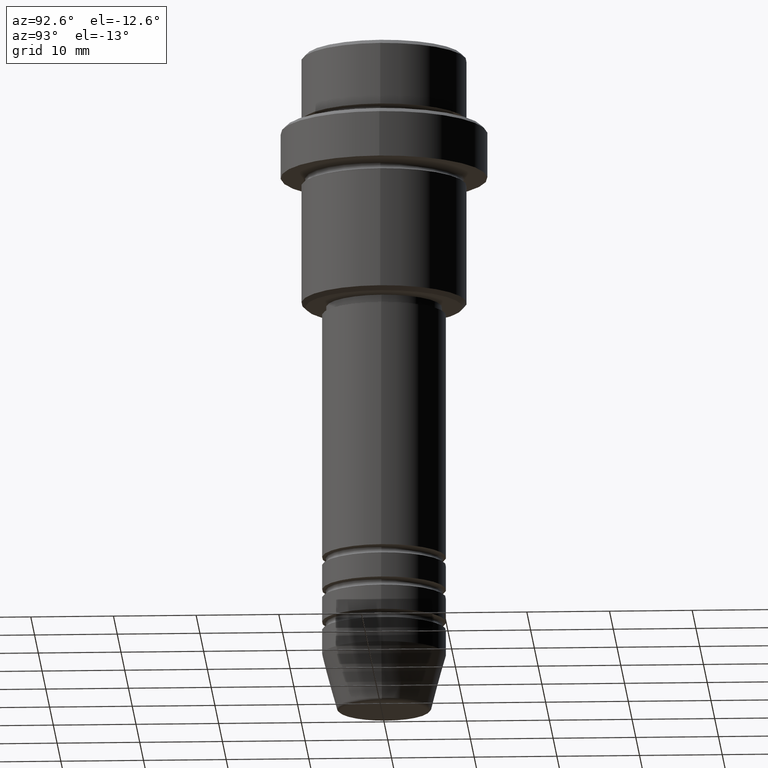
[diagram: clean part render]
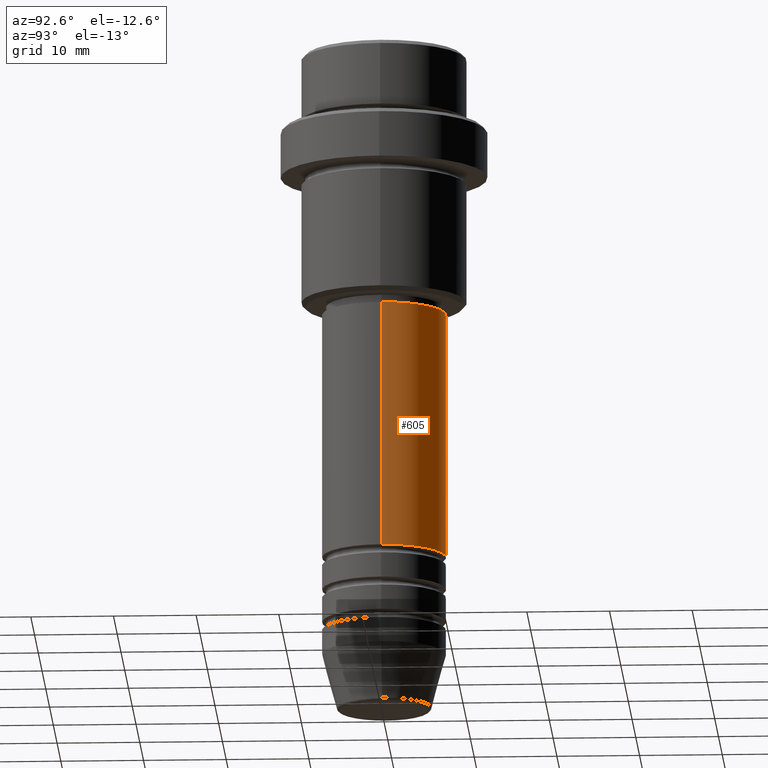
[diagram: same view with one face highlighted and labeled with its STEP entity id]
A machine part, auxiliary view. The second image highlights one B-rep face of the part: STEP entity #605.
In plain terms, the highlighted cylindrical surface (partial cylindrical patch) has radius 7.5 mm, axis along (-0, -0, 1).
Its self-contained STEP definition (entity closure, byte-faithful):
#3 = CARTESIAN_POINT ( 'NONE',  ( -7.500000000000000000, 9.184850993605147944E-16, 0.000000000000000000 ) ) ;
#122 = VERTEX_POINT ( 'NONE', #1126 ) ;
#152 = VECTOR ( 'NONE', #467, 1000.000000000000000 ) ;
#153 = AXIS2_PLACEMENT_3D ( 'NONE', #594, #289, #626 ) ;
#181 = AXIS2_PLACEMENT_3D ( 'NONE', #1038, #1254, #505 ) ;
#215 = ORIENTED_EDGE ( 'NONE', *, *, #735, .F. ) ;
#222 = ORIENTED_EDGE ( 'NONE', *, *, #1410, .T. ) ;
#230 = LINE ( 'NONE', #3, #152 ) ;
#264 = VERTEX_POINT ( 'NONE', #1268 ) ;
#286 = EDGE_LOOP ( 'NONE', ( #916, #222, #527, #215 ) ) ;
#289 = DIRECTION ( 'NONE',  ( -0.000000000000000000, -0.000000000000000000, 1.000000000000000000 ) ) ;
#294 = CARTESIAN_POINT ( 'NONE',  ( 7.500000000000000000, 0.000000000000000000, -32.00000000000000000 ) ) ;
#375 = VERTEX_POINT ( 'NONE', #419 ) ;
#419 = CARTESIAN_POINT ( 'NONE',  ( 7.500000000000000000, 0.000000000000000000, -61.99999999999987921 ) ) ;
#467 = DIRECTION ( 'NONE',  ( -0.000000000000000000, -0.000000000000000000, 1.000000000000000000 ) ) ;
#505 = DIRECTION ( 'NONE',  ( 1.000000000000000000, 0.000000000000000000, 0.000000000000000000 ) ) ;
#527 = ORIENTED_EDGE ( 'NONE', *, *, #669, .F. ) ;
#594 = CARTESIAN_POINT ( 'NONE',  ( 0.000000000000000000, 0.000000000000000000, -32.00000000000000000 ) ) ;
#605 = ADVANCED_FACE ( 'NONE', ( #612 ), #851, .T. ) ;
#612 = FACE_OUTER_BOUND ( 'NONE', #286, .T. ) ;
#616 = CARTESIAN_POINT ( 'NONE',  ( 0.000000000000000000, 0.000000000000000000, -61.99999999999987921 ) ) ;
#626 = DIRECTION ( 'NONE',  ( 1.000000000000000000, 0.000000000000000000, 0.000000000000000000 ) ) ;
#628 = VECTOR ( 'NONE', #1390, 1000.000000000000000 ) ;
#669 = EDGE_CURVE ( 'NONE', #1003, #264, #790, .T. ) ;
#735 = EDGE_CURVE ( 'NONE', #375, #1003, #987, .T. ) ;
#775 = CARTESIAN_POINT ( 'NONE',  ( 7.500000000000000000, 0.000000000000000000, 0.000000000000000000 ) ) ;
#790 = CIRCLE ( 'NONE', #153, 7.500000000000000000 ) ;
#851 = CYLINDRICAL_SURFACE ( 'NONE', #181, 7.500000000000000000 ) ;
#916 = ORIENTED_EDGE ( 'NONE', *, *, #1122, .T. ) ;
#966 = CIRCLE ( 'NONE', #1327, 7.500000000000000000 ) ;
#987 = LINE ( 'NONE', #775, #628 ) ;
#1003 = VERTEX_POINT ( 'NONE', #294 ) ;
#1038 = CARTESIAN_POINT ( 'NONE',  ( 0.000000000000000000, 0.000000000000000000, 0.000000000000000000 ) ) ;
#1049 = DIRECTION ( 'NONE',  ( -0.000000000000000000, -0.000000000000000000, 1.000000000000000000 ) ) ;
#1122 = EDGE_CURVE ( 'NONE', #375, #122, #966, .T. ) ;
#1126 = CARTESIAN_POINT ( 'NONE',  ( -7.500000000000000000, 9.184850993605147944E-16, -61.99999999999987921 ) ) ;
#1163 = DIRECTION ( 'NONE',  ( 1.000000000000000000, 0.000000000000000000, 0.000000000000000000 ) ) ;
#1254 = DIRECTION ( 'NONE',  ( -0.000000000000000000, -0.000000000000000000, 1.000000000000000000 ) ) ;
#1268 = CARTESIAN_POINT ( 'NONE',  ( -7.500000000000000000, 9.184850993605147944E-16, -32.00000000000000000 ) ) ;
#1327 = AXIS2_PLACEMENT_3D ( 'NONE', #616, #1049, #1163 ) ;
#1390 = DIRECTION ( 'NONE',  ( -0.000000000000000000, -0.000000000000000000, 1.000000000000000000 ) ) ;
#1410 = EDGE_CURVE ( 'NONE', #122, #264, #230, .T. ) ;